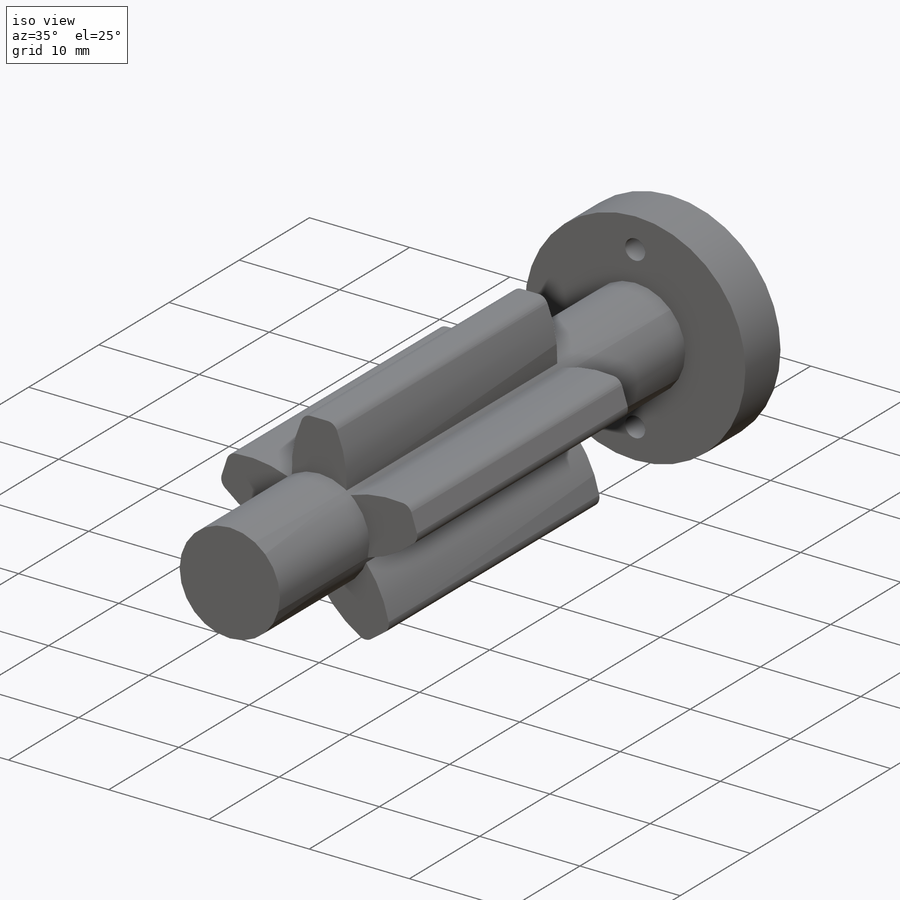
[diagram: iso view]
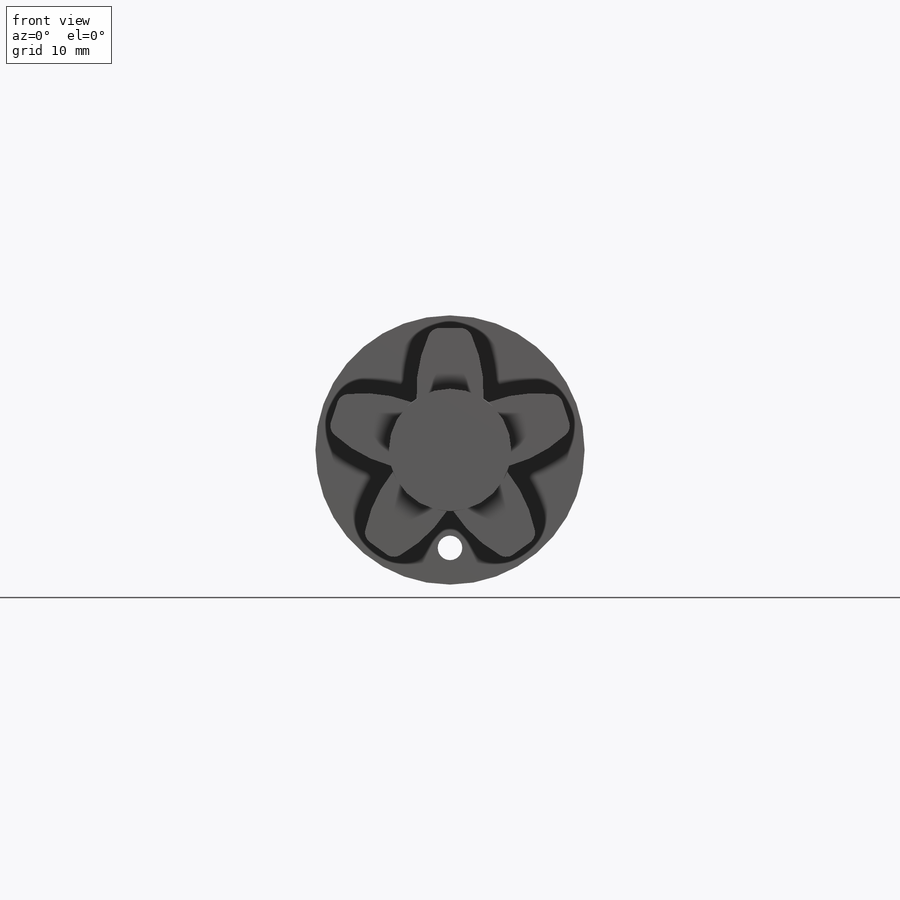
[diagram: front view]
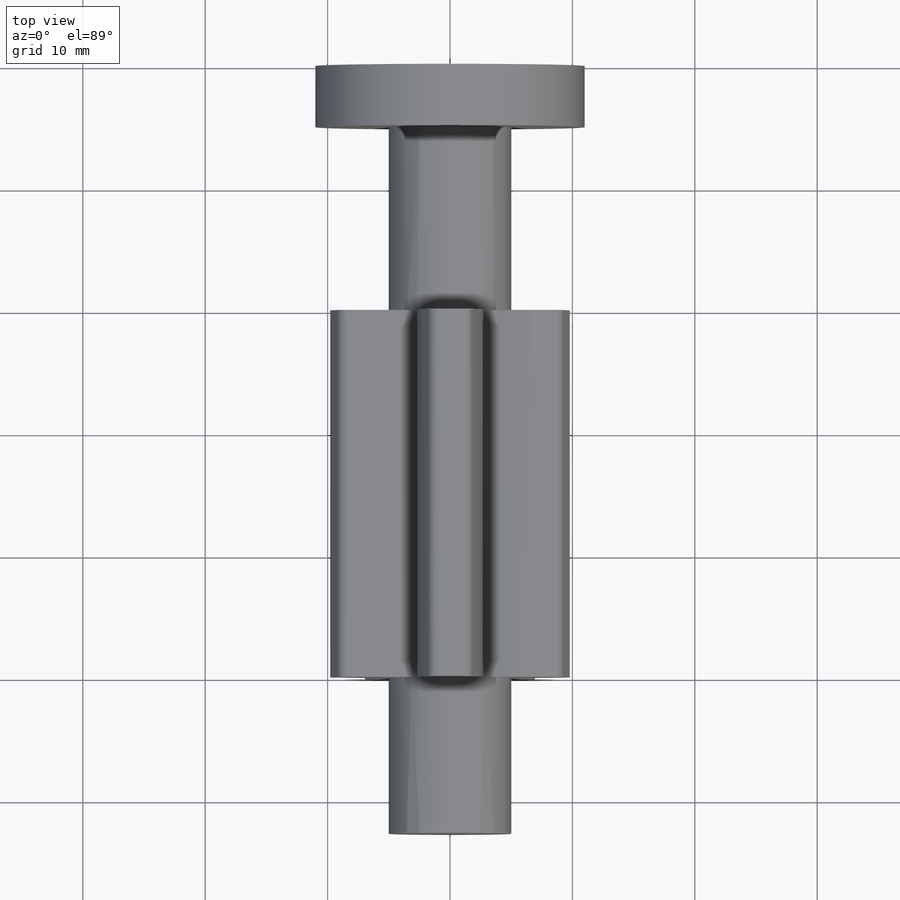
[diagram: top view]
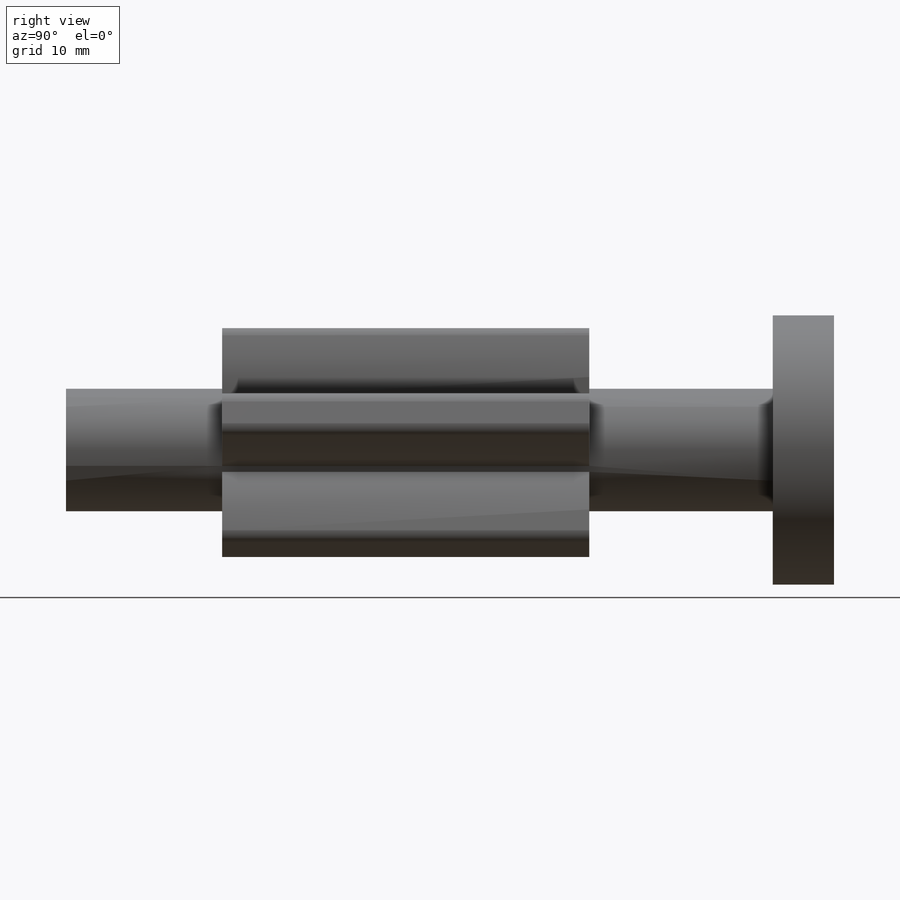
[diagram: right view]
SOLIDWORKS PART (.sldprt)
format: sldprt  version: not decoded by parser v0  size: 252,928 bytes
history: native  units: mm
features: plane x4, sketch x4, extrude x3, material x1, cut_extrude x1, fillet x1, pattern_circular x1 (+9 scaffold rows collapsed)
feature tree (24):
  scaffold x9  (default folders/planes/origin — collapsed)
  material  "Matériau <non spécifié>"
  plane  "Plan de face"
  plane  "Plan de dessus"
  plane  "Plan de droite"
  sketch  "Esquisse1"  dims[D1=22.0mm]
  extrude  "Boss.-Extru.1"  Depth=5mm
  sketch  "Esquisse2"  dims[D1=16.0mm D2=2.0mm]
  cut_extrude  "Enlèv. mat.-Extru.1"  [1 undecoded]
  sketch  "Esquisse3"  dims[D1=10.0mm]
  extrude  "Boss.-Extru.2"  Depth=57.75mm
  plane  "Plan1"  Offset=30mm
  sketch  "Esquisse4"  dims[c1.D1=5.0mm c1.D2=5.0mm c1.D3=5.0mm c2.D2=5.0mm c2.D4=3.0mm c2.D5=0.0mm]
  extrude  "Boss.-Extru.3"  Depth=30mm
  fillet  "Congé1"  Radius=1mm
  pattern_circular  "Répétition circulaire1"  Count=5 Angle=72deg
decode coverage: 9 of 10 modeling features carry decoded parameters
note: 1 parameter value undecoded
note: suppression state not decoded; provenance and decode notes live in map.json
